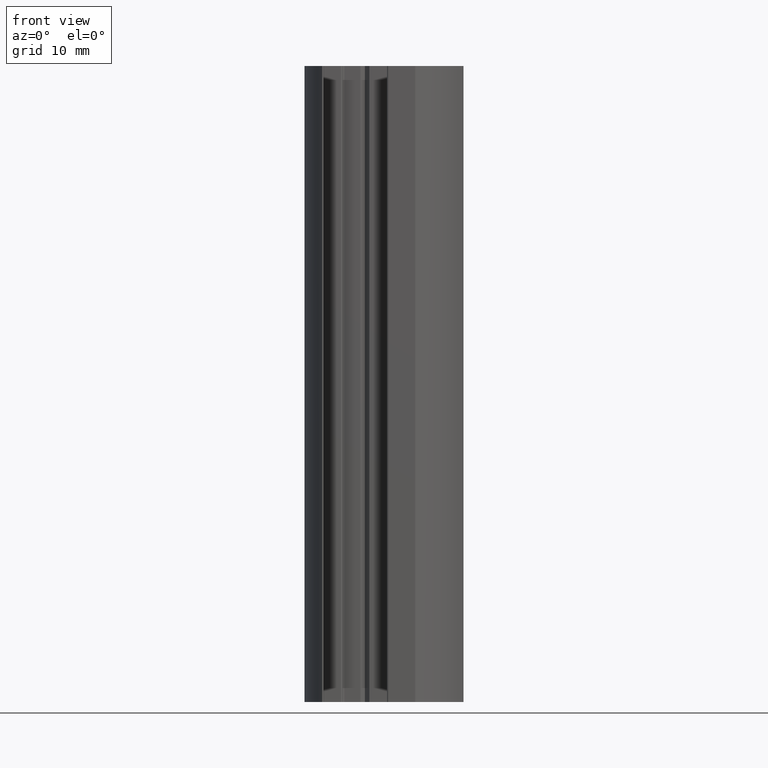
[diagram: clean part render]
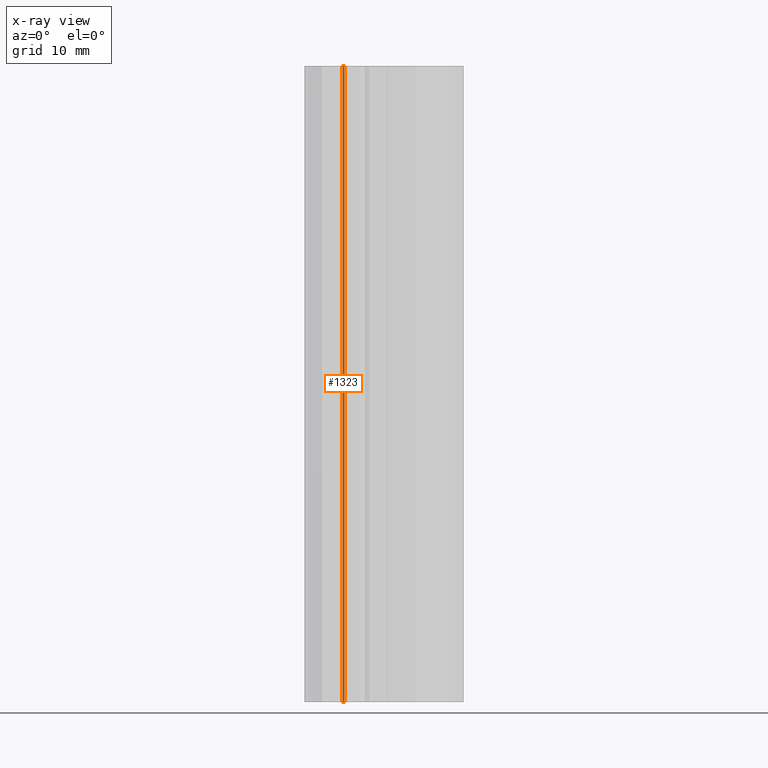
[diagram: x-ray — body ghosted, one internal face saturated and labeled with its STEP entity id]
A machine part, front view, then the same camera in x-ray: the body is ghosted and one INTERNAL B-rep face — a face not visible from any outside direction — is saturated and labeled: STEP entity #1323.
In plain terms, the highlighted cylindrical surface (edge-blend (fillet) strip) has radius 0.3 mm, axis along (0, 0, -1).
Its self-contained STEP definition (entity closure, byte-faithful):
#1265=CARTESIAN_POINT('',(-18.699999998141948,12.499999998394543,0.0));
#1266=VERTEX_POINT('',#1265);
#1273=CARTESIAN_POINT('',(-18.699999998141948,12.499999998394543,100.0));
#1274=VERTEX_POINT('',#1273);
#1275=CARTESIAN_POINT('',(-18.699999998141948,12.499999998394543,0.0));
#1276=DIRECTION('',(0.0,0.0,1.0));
#1277=VECTOR('',#1276,100.0);
#1278=LINE('',#1275,#1277);
#1279=EDGE_CURVE('',#1266,#1274,#1278,.T.);
#1291=CARTESIAN_POINT('',(-18.699999998142403,12.799999998364598,0.0));
#1292=DIRECTION('',(0.0,0.0,-1.0));
#1293=DIRECTION('',(1.515837E-012,-1.0,0.0));
#1294=AXIS2_PLACEMENT_3D('',#1291,#1292,#1293);
#1295=CYLINDRICAL_SURFACE('',#1294,0.299999999970055);
#1296=CARTESIAN_POINT('',(-18.999999998112457,12.799999998364598,0.0));
#1297=VERTEX_POINT('',#1296);
#1298=CARTESIAN_POINT('',(-18.699999998142403,12.799999998364598,0.0));
#1299=DIRECTION('',(0.0,0.0,-1.0));
#1300=DIRECTION('',(-1.0,0.0,0.0));
#1301=AXIS2_PLACEMENT_3D('',#1298,#1299,#1300);
#1302=CIRCLE('',#1301,0.299999999970055);
#1303=EDGE_CURVE('',#1266,#1297,#1302,.T.);
#1304=ORIENTED_EDGE('',*,*,#1303,.T.);
#1305=CARTESIAN_POINT('',(-18.999999998112457,12.799999998364598,100.0));
#1306=VERTEX_POINT('',#1305);
#1307=CARTESIAN_POINT('',(-18.999999998112457,12.799999998364598,0.0));
#1308=DIRECTION('',(0.0,0.0,1.0));
#1309=VECTOR('',#1308,100.0);
#1310=LINE('',#1307,#1309);
#1311=EDGE_CURVE('',#1297,#1306,#1310,.T.);
#1312=ORIENTED_EDGE('',*,*,#1311,.T.);
#1313=CARTESIAN_POINT('',(-18.699999998142403,12.799999998364598,100.0));
#1314=DIRECTION('',(0.0,0.0,-1.0));
#1315=DIRECTION('',(-1.0,0.0,0.0));
#1316=AXIS2_PLACEMENT_3D('',#1313,#1314,#1315);
#1317=CIRCLE('',#1316,0.299999999970055);
#1318=EDGE_CURVE('',#1274,#1306,#1317,.T.);
#1319=ORIENTED_EDGE('',*,*,#1318,.F.);
#1320=ORIENTED_EDGE('',*,*,#1279,.F.);
#1321=EDGE_LOOP('',(#1304,#1312,#1319,#1320));
#1322=FACE_OUTER_BOUND('',#1321,.T.);
#1323=ADVANCED_FACE('',(#1322),#1295,.F.);